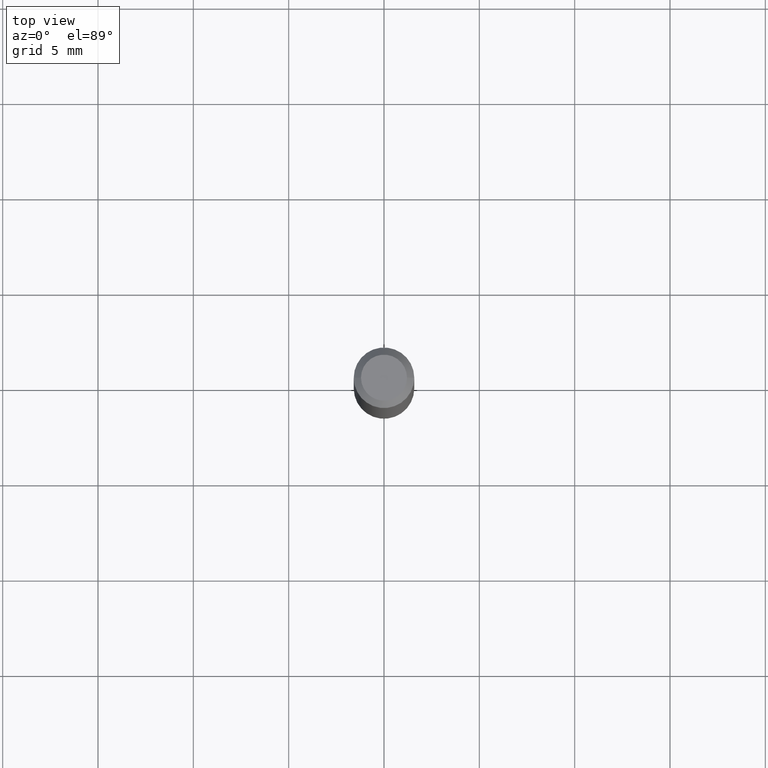
[diagram: clean part render]
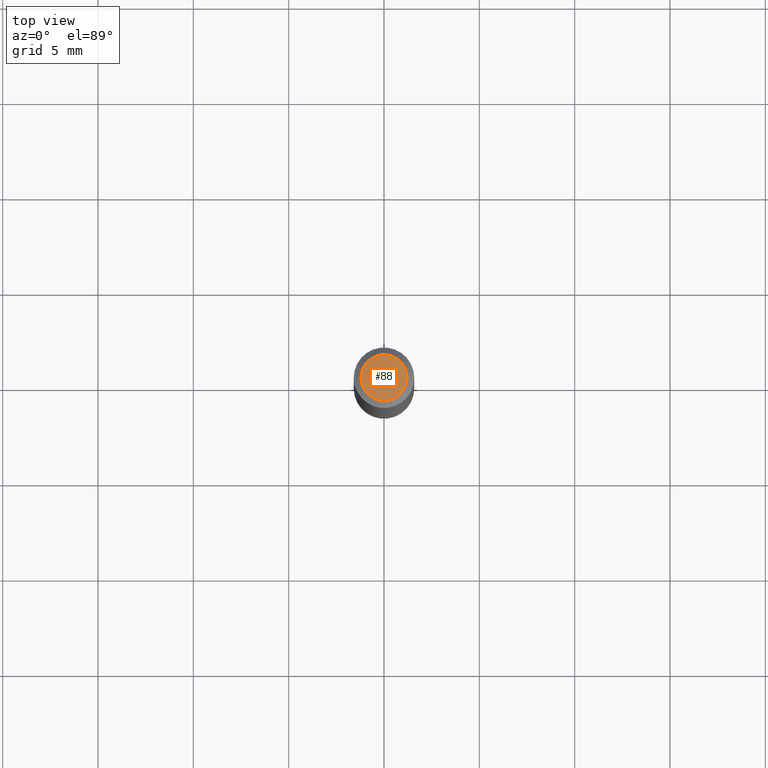
[diagram: same view with one face highlighted and labeled with its STEP entity id]
A machine part, top view. The second image highlights one B-rep face of the part: STEP entity #88.
In plain terms, the highlighted planar face has unit normal (0, -0, -1).
Its self-contained STEP definition (entity closure, byte-faithful):
#15 = EDGE_LOOP ( 'NONE', ( #125, #161 ) ) ;
#23 = DIRECTION ( 'NONE',  ( -2.445468806185136597E-29, 3.491481338843145583E-15, 1.000000000000000000 ) ) ;
#70 = AXIS2_PLACEMENT_3D ( 'NONE', #356, #23, #460 ) ;
#74 = FACE_OUTER_BOUND ( 'NONE', #15, .T. ) ;
#88 = ADVANCED_FACE ( 'NONE', ( #74 ), #323, .F. ) ;
#114 = VERTEX_POINT ( 'NONE', #176 ) ;
#125 = ORIENTED_EDGE ( 'NONE', *, *, #165, .T. ) ;
#127 = DIRECTION ( 'NONE',  ( 1.000000000000000000, -6.982962677686267499E-15, 4.852736867747366768E-29 ) ) ;
#147 = CIRCLE ( 'NONE', #70, 0.04749999999999999362 ) ;
#157 = CIRCLE ( 'NONE', #253, 0.04749999999999999362 ) ;
#161 = ORIENTED_EDGE ( 'NONE', *, *, #421, .T. ) ;
#165 = EDGE_CURVE ( 'NONE', #114, #227, #147, .T. ) ;
#176 = CARTESIAN_POINT ( 'NONE',  ( -0.04749999999999999362, 3.578768372314215436E-16, 2.469815280770035755E-16 ) ) ;
#226 = CARTESIAN_POINT ( 'NONE',  ( 0.04749999999999999362, -4.035134999187574186E-16, 2.469815280770085059E-16 ) ) ;
#227 = VERTEX_POINT ( 'NONE', #226 ) ;
#253 = AXIS2_PLACEMENT_3D ( 'NONE', #343, #275, #127 ) ;
#261 = AXIS2_PLACEMENT_3D ( 'NONE', #283, #286, #428 ) ;
#275 = DIRECTION ( 'NONE',  ( -2.445468806185136597E-29, 3.491481338843145583E-15, 1.000000000000000000 ) ) ;
#283 = CARTESIAN_POINT ( 'NONE',  ( 3.316907271900976096E-16, 0.04749999999999999362, -4.235459955654642541E-17 ) ) ;
#286 = DIRECTION ( 'NONE',  ( 2.438088387897960049E-29, -3.491481338843145188E-15, -1.000000000000000000 ) ) ;
#323 = PLANE ( 'NONE',  #261 ) ;
#343 = CARTESIAN_POINT ( 'NONE',  ( -6.039856226162565090E-45, 8.623313963198306787E-31, 2.469815280770059421E-16 ) ) ;
#356 = CARTESIAN_POINT ( 'NONE',  ( -6.039856226162565090E-45, 8.623313963198306787E-31, 2.469815280770059421E-16 ) ) ;
#421 = EDGE_CURVE ( 'NONE', #227, #114, #157, .T. ) ;
#428 = DIRECTION ( 'NONE',  ( -1.000000000000000000, 6.982962677686265922E-15, -4.876176775795935793E-29 ) ) ;
#460 = DIRECTION ( 'NONE',  ( 1.000000000000000000, -6.982962677686267499E-15, 4.852736867747366768E-29 ) ) ;